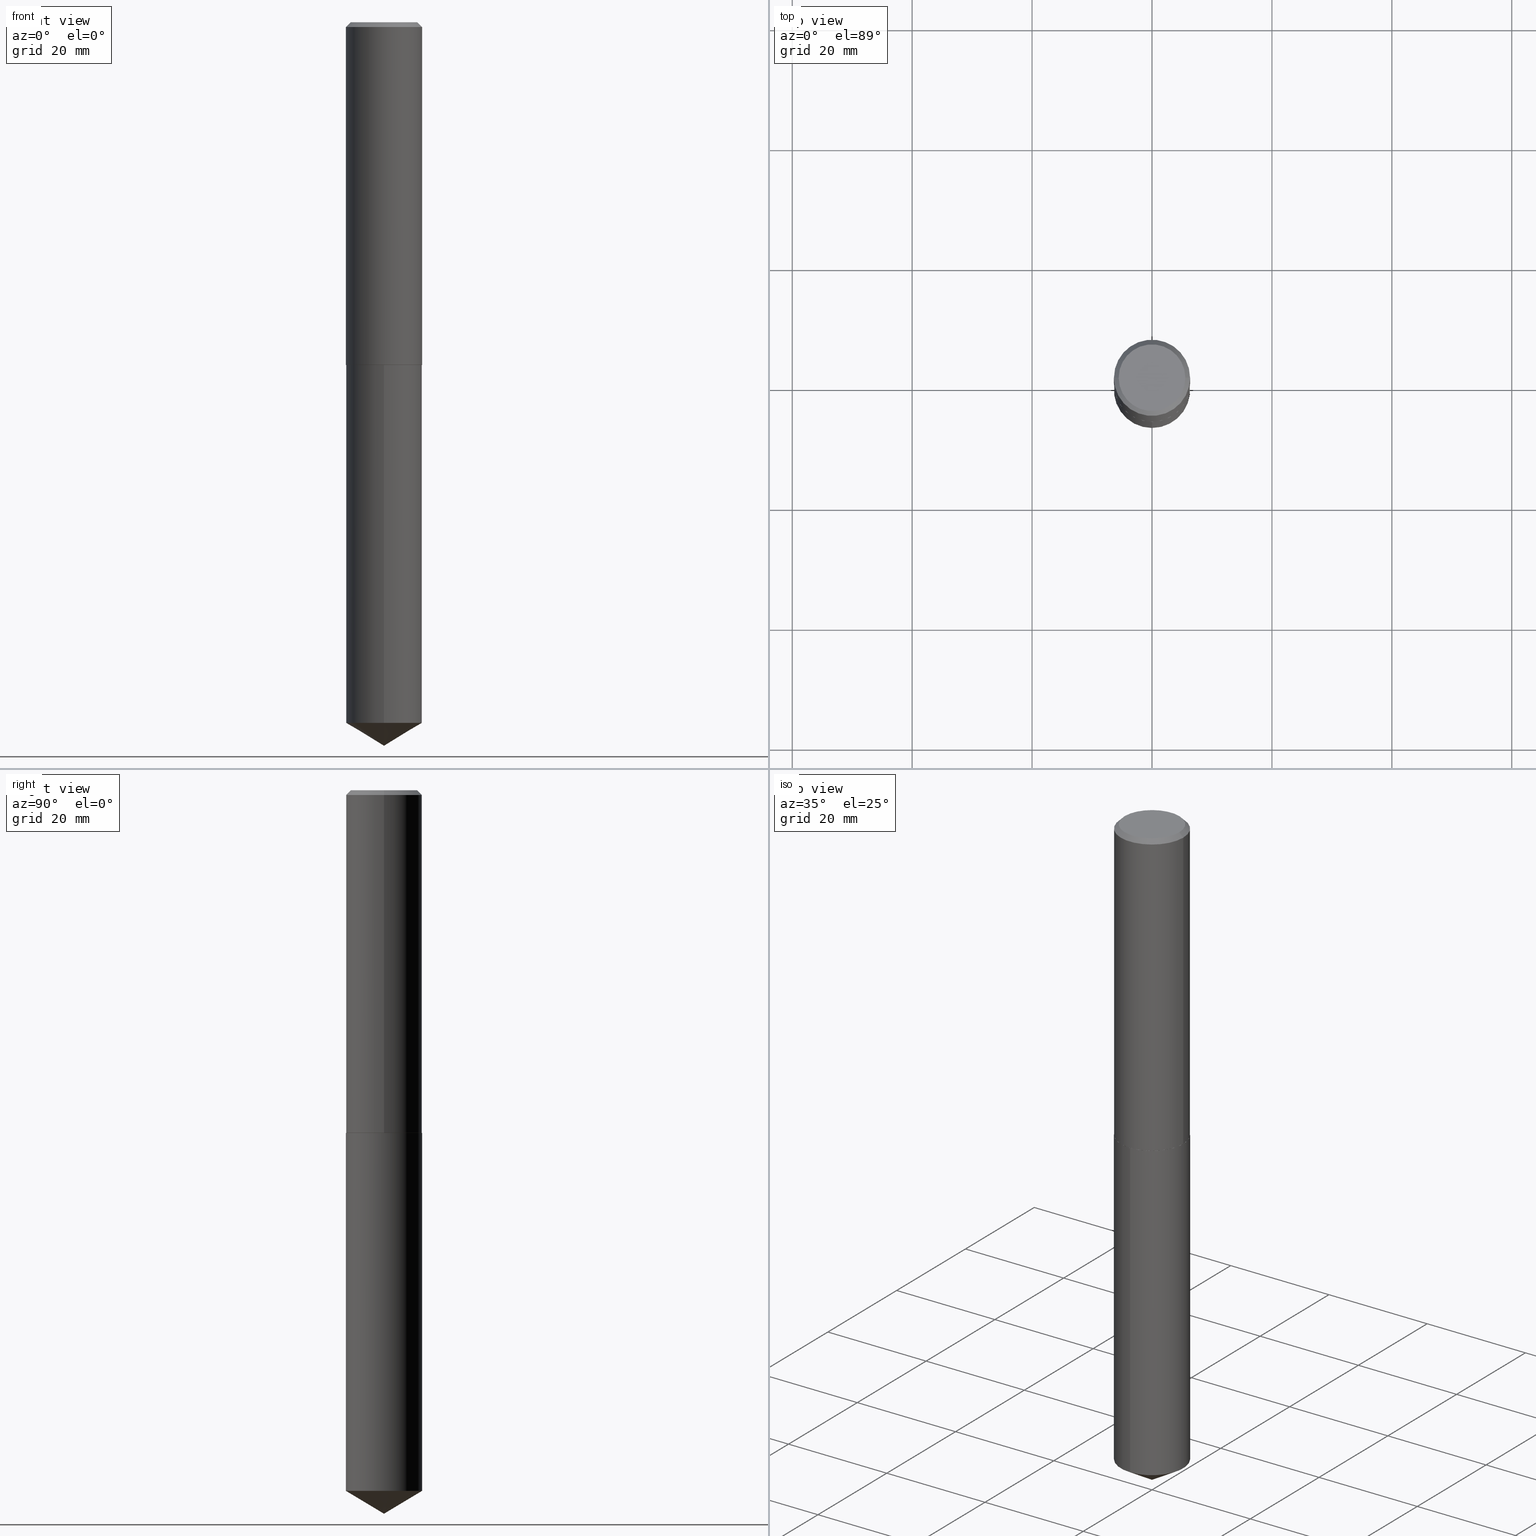
[diagram: canonical four-view strip — front | top / right | iso, engineering-drawing reading convention]
A machine part, canonical four-view strip (front | top / right | iso — engineering-drawing reading convention). The complete STEP part file that produces these views, byte-faithful:
ISO-10303-21;
HEADER;
FILE_DESCRIPTION (( 'STEP AP203' ),
    '1' );
FILE_NAME ('51132.STEP',
    '2024-04-22T18:34:38',
    ( '' ),
    ( '' ),
    'SwSTEP 2.0',
    'SolidWorks 2023',
    '' );
FILE_SCHEMA (( 'CONFIG_CONTROL_DESIGN' ));
ENDSEC;

DATA;
#1 = LINE ( 'NONE', #87, #347 ) ;
#2 = FACE_OUTER_BOUND ( 'NONE', #15, .T. ) ;
#3 = AXIS2_PLACEMENT_3D ( 'NONE', #251, #311, #338 ) ;
#4 = ADVANCED_FACE ( 'NONE', ( #228 ), #164, .T. ) ;
#5 = VERTEX_POINT ( 'NONE', #135 ) ;
#6 = DIRECTION ( 'NONE',  ( -6.982962677686265922E-15, -1.000000000000000000, 3.468864327941591848E-15 ) ) ;
#7 = EDGE_LOOP ( 'NONE', ( #350, #182 ) ) ;
#8 = ORIENTED_EDGE ( 'NONE', *, *, #114, .F. ) ;
#9 = AXIS2_PLACEMENT_3D ( 'NONE', #26, #118, #388 ) ;
#10 = FACE_OUTER_BOUND ( 'NONE', #69, .T. ) ;
#11 = ORIENTED_EDGE ( 'NONE', *, *, #207, .F. ) ;
#12 = DATE_AND_TIME ( #295, #126 ) ;
#13 = ORIENTED_EDGE ( 'NONE', *, *, #76, .F. ) ;
#14 = COORDINATED_UNIVERSAL_TIME_OFFSET ( 5, 0, .BEHIND. ) ;
#15 = EDGE_LOOP ( 'NONE', ( #63, #291, #130 ) ) ;
#16 = CONICAL_SURFACE ( 'NONE', #59, 65.52281426576847423, 1.029744258676654756 ) ;
#17 = VERTEX_POINT ( 'NONE', #263 ) ;
#18 = MANIFOLD_SOLID_BREP ( 'Body-Move/Copy2[2]', #52 ) ;
#19 = DATE_AND_TIME ( #131, #30 ) ;
#20 = CC_DESIGN_PERSON_AND_ORGANIZATION_ASSIGNMENT ( #129, #327, ( #110 ) ) ;
#21 = FACE_OUTER_BOUND ( 'NONE', #256, .T. ) ;
#22 = VECTOR ( 'NONE', #32, 39.37007874015747433 ) ;
#23 = AXIS2_PLACEMENT_3D ( 'NONE', #239, #390, #60 ) ;
#24 = APPLICATION_CONTEXT ( 'configuration controlled 3d designs of mechanical parts and assemblies' ) ;
#25 = DIRECTION ( 'NONE',  ( -1.000000000000000000, 6.982962677686266711E-15, 0.000000000000000000 ) ) ;
#26 = CARTESIAN_POINT ( 'NONE',  ( -8.466479816700748167E-28, 1.208718137559614316E-13, 34.62007874015748143 ) ) ;
#27 = ADVANCED_FACE ( 'NONE', ( #106 ), #200, .F. ) ;
#28 = DIRECTION ( 'NONE',  ( -2.445468806185136597E-29, 3.491481338843145583E-15, 1.000000000000000000 ) ) ;
#29 = AXIS2_PLACEMENT_3D ( 'NONE', #281, #319, #247 ) ;
#30 = LOCAL_TIME ( 14, 34, 38.00000000000000000, #14 ) ;
#31 = DIRECTION ( 'NONE',  ( -5.985567269335943646E-15, -0.8571673007021107793, 0.5150380749100569311 ) ) ;
#32 = DIRECTION ( 'NONE',  ( 6.090539988449781591E-15, 0.8571673007021143320, 0.5150380749100510469 ) ) ;
#33 = DIRECTION ( 'NONE',  ( -2.445468806185136597E-29, 3.491481338843145583E-15, 1.000000000000000000 ) ) ;
#34 = EDGE_CURVE ( 'NONE', #230, #5, #328, .T. ) ;
#35 = CIRCLE ( 'NONE', #29, 0.2500000000000000000 ) ;
#36 = DIRECTION ( 'NONE',  ( 1.000000000000000000, -6.982962677686266711E-15, 0.000000000000000000 ) ) ;
#37 = EDGE_LOOP ( 'NONE', ( #288, #224 ) ) ;
#38 = DIRECTION ( 'NONE',  ( -2.445468806185136877E-29, 3.491481338843145188E-15, 1.000000000000000000 ) ) ;
#39 = CYLINDRICAL_SURFACE ( 'NONE', #3, 0.2500000000000000000 ) ;
#40 = FACE_OUTER_BOUND ( 'NONE', #342, .T. ) ;
#41 = PLANE ( 'NONE',  #225 ) ;
#42 = VERTEX_POINT ( 'NONE', #296 ) ;
#43 = COORDINATED_UNIVERSAL_TIME_OFFSET ( 5, 0, .BEHIND. ) ;
#44 = EDGE_LOOP ( 'NONE', ( #307, #66, #367, #253 ) ) ;
#45 = DATE_TIME_ROLE ( 'creation_date' ) ;
#46 =( GEOMETRIC_REPRESENTATION_CONTEXT ( 3 ) GLOBAL_UNCERTAINTY_ASSIGNED_CONTEXT ( ( #214 ) ) GLOBAL_UNIT_ASSIGNED_CONTEXT ( ( #245, #98, #120 ) ) REPRESENTATION_CONTEXT ( 'NONE', 'WORKASPACE' ) );
#47 = PERSON_AND_ORGANIZATION_ROLE ( 'classification_officer' ) ;
#48 = ORIENTED_EDGE ( 'NONE', *, *, #217, .F. ) ;
#49 = CARTESIAN_POINT ( 'NONE',  ( -0.2500000000000001110, 1.776356839400251254E-15, -1.229733772563727146E-29 ) ) ;
#50 = ADVANCED_FACE ( 'NONE', ( #21 ), #103, .T. ) ;
#51 = PERSON_AND_ORGANIZATION ( #231, #198 ) ;
#52 = CLOSED_SHELL ( 'NONE', ( #316, #102, #379, #97, #56, #4, #50, #333 ) ) ;
#53 = AXIS2_PLACEMENT_3D ( 'NONE', #64, #121, #36 ) ;
#54 = DIRECTION ( 'NONE',  ( -2.445468806185136597E-29, 3.491481338843145583E-15, 1.000000000000000000 ) ) ;
#55 = CARTESIAN_POINT ( 'NONE',  ( 1.161629575509715326E-28, -1.658407963972499159E-14, -4.750000000000000000 ) ) ;
#56 = ADVANCED_FACE ( 'NONE', ( #331 ), #197, .T. ) ;
#57 = DIRECTION ( 'NONE',  ( -0.7071067811865451302, 2.468850131082231817E-15, -0.7071067811865499042 ) ) ;
#58 = CIRCLE ( 'NONE', #282, 0.2500000000000000000 ) ;
#59 = AXIS2_PLACEMENT_3D ( 'NONE', #95, #279, #6 ) ;
#60 = DIRECTION ( 'NONE',  ( -6.982962677686265922E-15, -1.000000000000000000, 3.278217592397115862E-15 ) ) ;
#61 = EDGE_CURVE ( 'NONE', #179, #82, #188, .T. ) ;
#62 = CARTESIAN_POINT ( 'NONE',  ( 0.2500000000000002776, -9.599827941149224411E-15, -2.249499999999999833 ) ) ;
#63 = ORIENTED_EDGE ( 'NONE', *, *, #212, .F. ) ;
#64 = CARTESIAN_POINT ( 'NONE',  ( 5.501082079513464541E-29, -7.854087271727656156E-15, -2.249499999999999833 ) ) ;
#65 = AXIS2_PLACEMENT_3D ( 'NONE', #161, #286, #168 ) ;
#66 = ORIENTED_EDGE ( 'NONE', *, *, #386, .T. ) ;
#67 = VECTOR ( 'NONE', #153, 39.37007874015748143 ) ;
#68 = DIRECTION ( 'NONE',  ( 0.7071067811865451302, -7.319954787623248157E-15, -0.7071067811865499042 ) ) ;
#69 = EDGE_LOOP ( 'NONE', ( #93, #280, #163, #48 ) ) ;
#70 = CARTESIAN_POINT ( 'NONE',  ( -2.335971725809272108E-47, 3.335148527799636409E-33, 9.552245033349346191E-19 ) ) ;
#71 = FACE_OUTER_BOUND ( 'NONE', #365, .T. ) ;
#72 = ORIENTED_EDGE ( 'NONE', *, *, #187, .F. ) ;
#73 = EDGE_CURVE ( 'NONE', #5, #42, #101, .T. ) ;
#74 = PERSON_AND_ORGANIZATION_ROLE ( 'creator' ) ;
#75 = ORIENTED_EDGE ( 'NONE', *, *, #140, .F. ) ;
#76 = EDGE_CURVE ( 'NONE', #139, #315, #35, .T. ) ;
#77 = APPLICATION_PROTOCOL_DEFINITION ( 'international standard', 'config_control_design', 1994, #389 ) ;
#78 = CARTESIAN_POINT ( 'NONE',  ( 5.502304813916556222E-29, -7.855833012397076871E-15, -2.249999999999999556 ) ) ;
#79 = PERSON_AND_ORGANIZATION ( #231, #198 ) ;
#80 = DIRECTION ( 'NONE',  ( 6.982962677686265922E-15, 1.000000000000000000, -3.491385187310524484E-15 ) ) ;
#81 = APPROVAL_STATUS ( 'not_yet_approved' ) ;
#82 = VERTEX_POINT ( 'NONE', #156 ) ;
#83 = DIRECTION ( 'NONE',  ( -2.445468806185136597E-29, 3.491481338843145583E-15, 1.000000000000000000 ) ) ;
#84 = LINE ( 'NONE', #62, #109 ) ;
#85 = CC_DESIGN_PERSON_AND_ORGANIZATION_ASSIGNMENT ( #79, #47, ( #165 ) ) ;
#86 = CIRCLE ( 'NONE', #317, 0.2500000000000002776 ) ;
#87 = CARTESIAN_POINT ( 'NONE',  ( -0.2500000000000000000, 1.636631877582717577E-15, -0.03125000000000021511 ) ) ;
#88 = EDGE_CURVE ( 'NONE', #370, #99, #302, .T. ) ;
#89 = CARTESIAN_POINT ( 'NONE',  ( 5.502304813916556222E-29, -7.855833012397076871E-15, -2.249999999999999556 ) ) ;
#90 = DIRECTION ( 'NONE',  ( 2.438088387897960049E-29, -3.491481338843145188E-15, -1.000000000000000000 ) ) ;
#91 = AXIS2_PLACEMENT_3D ( 'NONE', #112, #54, #387 ) ;
#92 = DIRECTION ( 'NONE',  ( -1.000000000000000000, 6.982962677686265922E-15, -4.876176775795935793E-29 ) ) ;
#93 = ORIENTED_EDGE ( 'NONE', *, *, #261, .T. ) ;
#94 = APPROVAL_PERSON_ORGANIZATION ( #51, #334, #293 ) ;
#95 = CARTESIAN_POINT ( 'NONE',  ( -8.466479816700748167E-28, 1.208718137559614316E-13, 34.62007874015748143 ) ) ;
#96 = FACE_OUTER_BOUND ( 'NONE', #7, .T. ) ;
#97 = ADVANCED_FACE ( 'NONE', ( #96 ), #220, .F. ) ;
#98 =( NAMED_UNIT ( * ) PLANE_ANGLE_UNIT ( ) SI_UNIT ( $, .RADIAN. ) );
#99 = VERTEX_POINT ( 'NONE', #332 ) ;
#100 = PERSON_AND_ORGANIZATION ( #231, #198 ) ;
#101 = CIRCLE ( 'NONE', #223, 0.2500000000000000000 ) ;
#102 = ADVANCED_FACE ( 'NONE', ( #147 ), #143, .T. ) ;
#103 = CONICAL_SURFACE ( 'NONE', #237, 0.2500000000000000000, 0.7853981633974449483 ) ;
#104 = APPROVAL_STATUS ( 'not_yet_approved' ) ;
#105 = ORIENTED_EDGE ( 'NONE', *, *, #34, .F. ) ;
#106 = FACE_OUTER_BOUND ( 'NONE', #37, .T. ) ;
#107 = DIRECTION ( 'NONE',  ( 0.000000000000000000, 0.000000000000000000, 1.000000000000000000 ) ) ;
#108 = VERTEX_POINT ( 'NONE', #55 ) ;
#109 = VECTOR ( 'NONE', #206, 39.37007874015748143 ) ;
#110 = PRODUCT_DEFINITION_FORMATION_WITH_SPECIFIED_SOURCE ( 'ANY', '', #265, .NOT_KNOWN. ) ;
#111 = CARTESIAN_POINT ( 'NONE',  ( 5.501082079513464541E-29, -7.854087271727656156E-15, -2.249499999999999833 ) ) ;
#112 = CARTESIAN_POINT ( 'NONE',  ( 5.501082079513464541E-29, -7.854087271727656156E-15, -2.249499999999999833 ) ) ;
#113 = CARTESIAN_POINT ( 'NONE',  ( 1.161629840450965379E-28, -1.658407963972498844E-14, -4.750000000000000000 ) ) ;
#114 = EDGE_CURVE ( 'NONE', #108, #312, #208, .T. ) ;
#115 = VECTOR ( 'NONE', #31, 39.37007874015748143 ) ;
#116 = LOCAL_TIME ( 14, 34, 38.00000000000000000, #43 ) ;
#117 = FACE_OUTER_BOUND ( 'NONE', #381, .T. ) ;
#118 = DIRECTION ( 'NONE',  ( -2.445535948441506068E-29, 3.491385187310524484E-15, 1.000000000000000000 ) ) ;
#119 = VECTOR ( 'NONE', #359, 39.37007874015748143 ) ;
#120 =( NAMED_UNIT ( * ) SI_UNIT ( $, .STERADIAN. ) SOLID_ANGLE_UNIT ( ) );
#121 = DIRECTION ( 'NONE',  ( -2.445468806185136597E-29, 3.491481338843145583E-15, 1.000000000000000000 ) ) ;
#122 = ORIENTED_EDGE ( 'NONE', *, *, #207, .T. ) ;
#123 = AXIS2_PLACEMENT_3D ( 'NONE', #195, #322, #294 ) ;
#124 = DIRECTION ( 'NONE',  ( -2.445535948441506068E-29, 3.491385187310524484E-15, 1.000000000000000000 ) ) ;
#125 = ORIENTED_EDGE ( 'NONE', *, *, #217, .T. ) ;
#126 = LOCAL_TIME ( 14, 34, 38.00000000000000000, #352 ) ;
#127 = CARTESIAN_POINT ( 'NONE',  ( -1.745740669421511457E-15, -0.2500000000000078271, -2.249999999999999112 ) ) ;
#128 = ORIENTED_EDGE ( 'NONE', *, *, #355, .T. ) ;
#129 = PERSON_AND_ORGANIZATION ( #231, #198 ) ;
#130 = ORIENTED_EDGE ( 'NONE', *, *, #330, .F. ) ;
#131 = CALENDAR_DATE ( 2024, 22, 4 ) ;
#132 = ORIENTED_EDGE ( 'NONE', *, *, #384, .T. ) ;
#133 = AXIS2_PLACEMENT_3D ( 'NONE', #213, #157, #252 ) ;
#134 = DIRECTION ( 'NONE',  ( 1.000000000000000000, 0.000000000000000000, 0.000000000000000000 ) ) ;
#135 = CARTESIAN_POINT ( 'NONE',  ( -0.2500000000000000000, -2.205241192383000191E-15, -0.03125000000000021511 ) ) ;
#136 = ORIENTED_EDGE ( 'NONE', *, *, #298, .F. ) ;
#137 = COORDINATED_UNIVERSAL_TIME_OFFSET ( 5, 0, .BEHIND. ) ;
#138 = CIRCLE ( 'NONE', #348, 0.2495000000000003049 ) ;
#139 = VERTEX_POINT ( 'NONE', #362 ) ;
#140 = EDGE_CURVE ( 'NONE', #42, #5, #175, .T. ) ;
#141 = CARTESIAN_POINT ( 'NONE',  ( 5.502304813916556222E-29, -7.855833012397076871E-15, -2.249999999999999556 ) ) ;
#142 = DIRECTION ( 'NONE',  ( -2.445535948441506068E-29, 3.491385187310524484E-15, 1.000000000000000000 ) ) ;
#143 = CYLINDRICAL_SURFACE ( 'NONE', #242, 0.2500000000000001110 ) ;
#144 = AXIS2_PLACEMENT_3D ( 'NONE', #336, #221, #314 ) ;
#145 = DIRECTION ( 'NONE',  ( 1.000000000000000000, -6.982962677686266711E-15, 0.000000000000000000 ) ) ;
#146 = APPROVAL ( #81, 'UNSPECIFIED' ) ;
#147 = FACE_OUTER_BOUND ( 'NONE', #222, .T. ) ;
#148 = MANIFOLD_SOLID_BREP ( 'Body-Move/Copy2[1]', #150 ) ;
#149 = CARTESIAN_POINT ( 'NONE',  ( 1.124878812406164387E-28, -1.605983701444562485E-14, -4.599784845243109821 ) ) ;
#150 = CLOSED_SHELL ( 'NONE', ( #324, #371, #158, #289, #27 ) ) ;
#151 = CC_DESIGN_PERSON_AND_ORGANIZATION_ASSIGNMENT ( #373, #74, ( #180 ) ) ;
#152 = LOCAL_TIME ( 14, 34, 38.00000000000000000, #260 ) ;
#153 = DIRECTION ( 'NONE',  ( -2.445535948441506068E-29, 3.491385187310524484E-15, 1.000000000000000000 ) ) ;
#154 = ORIENTED_EDGE ( 'NONE', *, *, #386, .F. ) ;
#155 = LINE ( 'NONE', #248, #272 ) ;
#156 = CARTESIAN_POINT ( 'NONE',  ( 0.2495000000000003049, -9.598082200479802119E-15, -2.249999999999999556 ) ) ;
#157 = DIRECTION ( 'NONE',  ( -2.445535948441506068E-29, 3.491385187310524484E-15, 1.000000000000000000 ) ) ;
#158 = ADVANCED_FACE ( 'NONE', ( #2 ), #204, .T. ) ;
#159 = CARTESIAN_POINT ( 'NONE',  ( 7.642090019328604414E-31, -1.091087918388490513E-16, -0.03125000000000021511 ) ) ;
#160 = EDGE_LOOP ( 'NONE', ( #249, #346 ) ) ;
#161 = CARTESIAN_POINT ( 'NONE',  ( 3.781988849709876148E-29, -1.031942338744500588E-14, -2.249999999999999556 ) ) ;
#162 = EDGE_LOOP ( 'NONE', ( #325, #219, #125, #11 ) ) ;
#163 = ORIENTED_EDGE ( 'NONE', *, *, #304, .F. ) ;
#164 = CYLINDRICAL_SURFACE ( 'NONE', #123, 0.2500000000000001110 ) ;
#165 = SECURITY_CLASSIFICATION ( '', '', #166 ) ;
#166 = SECURITY_CLASSIFICATION_LEVEL ( 'unclassified' ) ;
#167 = DIRECTION ( 'NONE',  ( -2.445468806185136877E-29, 3.491481338843145188E-15, 1.000000000000000000 ) ) ;
#168 = DIRECTION ( 'NONE',  ( 1.000000000000000000, -6.982962677686265922E-15, 4.876176775795935793E-29 ) ) ;
#169 = AXIS2_PLACEMENT_3D ( 'NONE', #178, #305, #366 ) ;
#170 = DIRECTION ( 'NONE',  ( -2.445468806185136597E-29, 3.491481338843145583E-15, 1.000000000000000000 ) ) ;
#171 = PRODUCT_DEFINITION_SHAPE ( 'NONE', 'NONE',  #180 ) ;
#172 = DIRECTION ( 'NONE',  ( -2.445468806185136597E-29, 3.491481338843145583E-15, 1.000000000000000000 ) ) ;
#173 = CARTESIAN_POINT ( 'NONE',  ( 5.502304813916556222E-29, -7.855833012397076871E-15, -2.249999999999999556 ) ) ;
#174 = CC_DESIGN_DATE_AND_TIME_ASSIGNMENT ( #264, #45, ( #180 ) ) ;
#175 = CIRCLE ( 'NONE', #271, 0.2500000000000000000 ) ;
#176 = CONICAL_SURFACE ( 'NONE', #53, 0.2500000000000002776, 0.7853981633975165577 ) ;
#177 = DIRECTION ( 'NONE',  ( -6.982962677686265922E-15, -1.000000000000000000, 4.370956789862821150E-15 ) ) ;
#178 = CARTESIAN_POINT ( 'NONE',  ( -2.335971725809272108E-47, 3.335148527799636409E-33, 9.552245033349346191E-19 ) ) ;
#179 = VERTEX_POINT ( 'NONE', #360 ) ;
#180 = PRODUCT_DEFINITION ( 'UNKNOWN', '', #110, #254 ) ;
#181 = CARTESIAN_POINT ( 'NONE',  ( 1.776356839400362877E-15, 0.2499999999999921452, -2.250000000000000444 ) ) ;
#182 = ORIENTED_EDGE ( 'NONE', *, *, #61, .F. ) ;
#183 = EDGE_CURVE ( 'NONE', #312, #234, #58, .T. ) ;
#184 = FACE_OUTER_BOUND ( 'NONE', #44, .T. ) ;
#185 =( LENGTH_UNIT ( ) NAMED_UNIT ( * ) SI_UNIT ( $, .METRE. ) );
#186 = ORIENTED_EDGE ( 'NONE', *, *, #384, .F. ) ;
#187 = EDGE_CURVE ( 'NONE', #315, #139, #374, .T. ) ;
#188 = CIRCLE ( 'NONE', #297, 0.2495000000000003049 ) ;
#189 = FACE_OUTER_BOUND ( 'NONE', #160, .T. ) ;
#190 = ORIENTED_EDGE ( 'NONE', *, *, #73, .T. ) ;
#191 = APPROVAL_PERSON_ORGANIZATION ( #349, #146, #267 ) ;
#192 = APPROVAL_DATE_TIME ( #385, #146 ) ;
#193 = PRODUCT_RELATED_PRODUCT_CATEGORY ( 'detail', '', ( #265 ) ) ;
#194 = APPROVAL_DATE_TIME ( #351, #337 ) ;
#195 = CARTESIAN_POINT ( 'NONE',  ( 0.000000000000000000, 0.000000000000000000, 0.000000000000000000 ) ) ;
#196 = CALENDAR_DATE ( 2024, 22, 4 ) ;
#197 = CONICAL_SURFACE ( 'NONE', #91, 0.2500000000000002776, 0.7853981633975165577 ) ;
#198 = ORGANIZATION ( 'UNSPECIFIED', 'UNSPECIFIED', '' ) ;
#199 = MECHANICAL_CONTEXT ( 'NONE', #24, 'mechanical' ) ;
#200 = PLANE ( 'NONE',  #275 ) ;
#201 = APPROVAL_DATE_TIME ( #12, #334 ) ;
#202 = ORIENTED_EDGE ( 'NONE', *, *, #355, .F. ) ;
#203 = DIRECTION ( 'NONE',  ( 2.445468806185136597E-29, -3.491481338843145583E-15, -1.000000000000000000 ) ) ;
#204 = CONICAL_SURFACE ( 'NONE', #9, 65.52281426576847423, 1.029744258676654756 ) ;
#205 = CC_DESIGN_SECURITY_CLASSIFICATION ( #165, ( #110 ) ) ;
#206 = DIRECTION ( 'NONE',  ( 0.7071067811865957564, -2.468850131082761932E-15, 0.7071067811864992780 ) ) ;
#207 = EDGE_CURVE ( 'NONE', #230, #17, #86, .T. ) ;
#208 = LINE ( 'NONE', #240, #115 ) ;
#209 = CYLINDRICAL_SURFACE ( 'NONE', #23, 0.2500000000000000000 ) ;
#210 = CARTESIAN_POINT ( 'NONE',  ( -0.2500000000000002776, -6.077730432327403325E-15, -2.249499999999999833 ) ) ;
#211 = LENGTH_MEASURE_WITH_UNIT ( LENGTH_MEASURE( 0.02539999999999999897 ), #185 );
#212 = EDGE_CURVE ( 'NONE', #108, #234, #357, .T. ) ;
#213 = CARTESIAN_POINT ( 'NONE',  ( 1.124878812406164387E-28, -1.605983701444562485E-14, -4.599784845243109821 ) ) ;
#214 = UNCERTAINTY_MEASURE_WITH_UNIT (LENGTH_MEASURE( 1.000000000000000082E-05 ), #245, 'distance_accuracy_value', 'NONE');
#215 = LINE ( 'NONE', #127, #67 ) ;
#216 = ORIENTED_EDGE ( 'NONE', *, *, #34, .T. ) ;
#217 = EDGE_CURVE ( 'NONE', #82, #17, #84, .T. ) ;
#218 = CARTESIAN_POINT ( 'NONE',  ( -1.167985862904636054E-47, 1.667574263899818204E-33, 4.776122516674673095E-19 ) ) ;
#219 = ORIENTED_EDGE ( 'NONE', *, *, #61, .T. ) ;
#220 = PLANE ( 'NONE',  #65 ) ;
#221 = DIRECTION ( 'NONE',  ( -2.445468806185136597E-29, 3.491481338843145583E-15, 1.000000000000000000 ) ) ;
#222 = EDGE_LOOP ( 'NONE', ( #372, #216, #75, #318 ) ) ;
#223 = AXIS2_PLACEMENT_3D ( 'NONE', #299, #83, #309 ) ;
#224 = ORIENTED_EDGE ( 'NONE', *, *, #187, .T. ) ;
#225 = AXIS2_PLACEMENT_3D ( 'NONE', #218, #90, #92 ) ;
#226 = CC_DESIGN_PERSON_AND_ORGANIZATION_ASSIGNMENT ( #255, #382, ( #265 ) ) ;
#227 = CALENDAR_DATE ( 2024, 22, 4 ) ;
#228 = FACE_OUTER_BOUND ( 'NONE', #354, .T. ) ;
#229 = APPLICATION_PROTOCOL_DEFINITION ( 'international standard', 'config_control_design', 1994, #24 ) ;
#230 = VERTEX_POINT ( 'NONE', #335 ) ;
#231 = PERSON ( 'UNSPECIFIED', 'UNSPECIFIED', 'UNSPECIFIED', ('UNSPECIFIED'), ('UNSPECIFIED'), ('UNSPECIFIED') ) ;
#232 = EDGE_CURVE ( 'NONE', #179, #230, #236, .T. ) ;
#233 = APPROVAL_STATUS ( 'not_yet_approved' ) ;
#234 = VERTEX_POINT ( 'NONE', #273 ) ;
#235 = DIRECTION ( 'NONE',  ( -2.445535948441506068E-29, 3.491385187310524484E-15, 1.000000000000000000 ) ) ;
#236 = LINE ( 'NONE', #210, #119 ) ;
#237 = AXIS2_PLACEMENT_3D ( 'NONE', #268, #203, #25 ) ;
#238 = VECTOR ( 'NONE', #68, 39.37007874015748143 ) ;
#239 = CARTESIAN_POINT ( 'NONE',  ( 5.502304813916556222E-29, -7.855833012397076871E-15, -2.249999999999999556 ) ) ;
#240 = CARTESIAN_POINT ( 'NONE',  ( 1.161599361494349176E-28, -1.658451232162178338E-14, -4.750000000000000000 ) ) ;
#241 = DIRECTION ( 'NONE',  ( -6.982962677686265922E-15, -1.000000000000000000, 3.278217592397115862E-15 ) ) ;
#242 = AXIS2_PLACEMENT_3D ( 'NONE', #301, #172, #274 ) ;
#243 = CC_DESIGN_APPROVAL ( #146, ( #180 ) ) ;
#244 = EDGE_CURVE ( 'NONE', #99, #5, #1, .T. ) ;
#245 =( CONVERSION_BASED_UNIT ( 'INCH', #211 ) LENGTH_UNIT ( ) NAMED_UNIT ( #361 ) );
#246 = ORIENTED_EDGE ( 'NONE', *, *, #330, .T. ) ;
#247 = DIRECTION ( 'NONE',  ( -6.982962677686265922E-15, -1.000000000000000000, 3.278217592397115862E-15 ) ) ;
#248 = CARTESIAN_POINT ( 'NONE',  ( 1.776356839400305291E-15, 0.2499999999999921452, -2.250000000000000444 ) ) ;
#249 = ORIENTED_EDGE ( 'NONE', *, *, #298, .T. ) ;
#250 = LOCAL_TIME ( 14, 34, 38.00000000000000000, #137 ) ;
#251 = CARTESIAN_POINT ( 'NONE',  ( 5.502304813916556222E-29, -7.855833012397076871E-15, -2.249999999999999556 ) ) ;
#252 = DIRECTION ( 'NONE',  ( -6.982962677686265922E-15, -1.000000000000000000, 4.370956789862821150E-15 ) ) ;
#253 = ORIENTED_EDGE ( 'NONE', *, *, #244, .F. ) ;
#254 = DESIGN_CONTEXT ( 'detailed design', #389, 'design' ) ;
#255 = PERSON_AND_ORGANIZATION ( #231, #198 ) ;
#256 = EDGE_LOOP ( 'NONE', ( #154, #136, #339, #190 ) ) ;
#257 = DIRECTION ( 'NONE',  ( -2.445468806185136597E-29, 3.491481338843145583E-15, 1.000000000000000000 ) ) ;
#258 = AXIS2_PLACEMENT_3D ( 'NONE', #89, #235, #241 ) ;
#259 = VECTOR ( 'NONE', #38, 39.37007874015748143 ) ;
#260 = COORDINATED_UNIVERSAL_TIME_OFFSET ( 5, 0, .BEHIND. ) ;
#261 = EDGE_CURVE ( 'NONE', #82, #179, #138, .T. ) ;
#262 = PERSON_AND_ORGANIZATION ( #231, #198 ) ;
#263 = CARTESIAN_POINT ( 'NONE',  ( 0.2500000000000002776, -9.599827941149224411E-15, -2.249499999999999833 ) ) ;
#264 = DATE_AND_TIME ( #196, #116 ) ;
#265 = PRODUCT ( '51132', '51132', '', ( #199 ) ) ;
#266 = CC_DESIGN_PERSON_AND_ORGANIZATION_ASSIGNMENT ( #100, #290, ( #110 ) ) ;
#267 = APPROVAL_ROLE ( '' ) ;
#268 = CARTESIAN_POINT ( 'NONE',  ( 7.642090019328604414E-31, -1.091087918388490513E-16, -0.03125000000000021511 ) ) ;
#269 = DIRECTION ( 'NONE',  ( 1.000000000000000000, -6.982962677686266711E-15, 0.000000000000000000 ) ) ;
#270 = DIRECTION ( 'NONE',  ( -2.445468806185136597E-29, 3.491481338843145583E-15, 1.000000000000000000 ) ) ;
#271 = AXIS2_PLACEMENT_3D ( 'NONE', #300, #33, #269 ) ;
#272 = VECTOR ( 'NONE', #124, 39.37007874015748143 ) ;
#273 = CARTESIAN_POINT ( 'NONE',  ( 1.776356839400362483E-15, 0.2499999999999839018, -4.599784845243110709 ) ) ;
#274 = DIRECTION ( 'NONE',  ( 1.000000000000000000, -6.982962677686267499E-15, 4.876176775795936353E-29 ) ) ;
#275 = AXIS2_PLACEMENT_3D ( 'NONE', #78, #353, #80 ) ;
#276 = ORIENTED_EDGE ( 'NONE', *, *, #183, .F. ) ;
#277 = CARTESIAN_POINT ( 'NONE',  ( 0.2500000000000001110, -1.745740669421567664E-15, 1.219044193948984649E-29 ) ) ;
#278 = ORIENTED_EDGE ( 'NONE', *, *, #212, .T. ) ;
#279 = DIRECTION ( 'NONE',  ( -2.445535948441506068E-29, 3.491385187310524484E-15, 1.000000000000000000 ) ) ;
#280 = ORIENTED_EDGE ( 'NONE', *, *, #232, .T. ) ;
#281 = CARTESIAN_POINT ( 'NONE',  ( 5.502304813916556222E-29, -7.855833012397076871E-15, -2.249999999999999556 ) ) ;
#282 = AXIS2_PLACEMENT_3D ( 'NONE', #149, #142, #177 ) ;
#283 = CIRCLE ( 'NONE', #169, 0.2187500000000000000 ) ;
#284 = DIRECTION ( 'NONE',  ( -1.000000000000000000, 6.982962677686266711E-15, 0.000000000000000000 ) ) ;
#285 = ORIENTED_EDGE ( 'NONE', *, *, #73, .F. ) ;
#286 = DIRECTION ( 'NONE',  ( -2.438088387897960049E-29, 3.491481338843145188E-15, 1.000000000000000000 ) ) ;
#287 = CALENDAR_DATE ( 2024, 22, 4 ) ;
#288 = ORIENTED_EDGE ( 'NONE', *, *, #76, .T. ) ;
#289 = ADVANCED_FACE ( 'NONE', ( #117 ), #209, .T. ) ;
#290 = PERSON_AND_ORGANIZATION_ROLE ( 'design_supplier' ) ;
#291 = ORIENTED_EDGE ( 'NONE', *, *, #114, .T. ) ;
#292 = AXIS2_PLACEMENT_3D ( 'NONE', #329, #107, #134 ) ;
#293 = APPROVAL_ROLE ( '' ) ;
#294 = DIRECTION ( 'NONE',  ( 1.000000000000000000, -6.982962677686267499E-15, 4.876176775795936353E-29 ) ) ;
#295 = CALENDAR_DATE ( 2024, 22, 4 ) ;
#296 = CARTESIAN_POINT ( 'NONE',  ( 0.2500000000000000000, -1.854849461260415778E-15, -0.03125000000000021511 ) ) ;
#297 = AXIS2_PLACEMENT_3D ( 'NONE', #141, #170, #356 ) ;
#298 = EDGE_CURVE ( 'NONE', #99, #370, #283, .T. ) ;
#299 = CARTESIAN_POINT ( 'NONE',  ( 7.642090019328604414E-31, -1.091087918388490513E-16, -0.03125000000000021511 ) ) ;
#300 = CARTESIAN_POINT ( 'NONE',  ( 7.642090019328604414E-31, -1.091087918388490513E-16, -0.03125000000000021511 ) ) ;
#301 = CARTESIAN_POINT ( 'NONE',  ( 0.000000000000000000, 0.000000000000000000, 0.000000000000000000 ) ) ;
#302 = CIRCLE ( 'NONE', #308, 0.2187500000000000000 ) ;
#303 = DIRECTION ( 'NONE',  ( 1.000000000000000000, -6.982962677686264344E-15, 0.000000000000000000 ) ) ;
#304 = EDGE_CURVE ( 'NONE', #17, #230, #363, .T. ) ;
#305 = DIRECTION ( 'NONE',  ( -2.445468806185136597E-29, 3.491481338843145583E-15, 1.000000000000000000 ) ) ;
#306 = CARTESIAN_POINT ( 'NONE',  ( 0.2187500000000000000, -1.662483614147127260E-15, 9.552245033460884497E-19 ) ) ;
#307 = ORIENTED_EDGE ( 'NONE', *, *, #88, .F. ) ;
#308 = AXIS2_PLACEMENT_3D ( 'NONE', #70, #257, #313 ) ;
#309 = DIRECTION ( 'NONE',  ( 1.000000000000000000, -6.982962677686266711E-15, 0.000000000000000000 ) ) ;
#310 = AXIS2_PLACEMENT_3D ( 'NONE', #159, #369, #284 ) ;
#311 = DIRECTION ( 'NONE',  ( -2.445535948441506068E-29, 3.491385187310524484E-15, 1.000000000000000000 ) ) ;
#312 = VERTEX_POINT ( 'NONE', #364 ) ;
#313 = DIRECTION ( 'NONE',  ( 1.000000000000000000, -6.982962677686266711E-15, 4.876188151940832700E-29 ) ) ;
#314 = DIRECTION ( 'NONE',  ( 1.000000000000000000, -6.982962677686266711E-15, 0.000000000000000000 ) ) ;
#315 = VERTEX_POINT ( 'NONE', #181 ) ;
#316 = ADVANCED_FACE ( 'NONE', ( #184 ), #375, .T. ) ;
#317 = AXIS2_PLACEMENT_3D ( 'NONE', #111, #270, #145 ) ;
#318 = ORIENTED_EDGE ( 'NONE', *, *, #358, .F. ) ;
#319 = DIRECTION ( 'NONE',  ( -2.445535948441506068E-29, 3.491385187310524484E-15, 1.000000000000000000 ) ) ;
#320 = ORIENTED_EDGE ( 'NONE', *, *, #358, .T. ) ;
#321 = SHAPE_DEFINITION_REPRESENTATION ( #171, #326 ) ;
#322 = DIRECTION ( 'NONE',  ( -2.445468806185136597E-29, 3.491481338843145583E-15, 1.000000000000000000 ) ) ;
#323 = APPROVAL_PERSON_ORGANIZATION ( #262, #337, #380 ) ;
#324 = ADVANCED_FACE ( 'NONE', ( #71 ), #39, .T. ) ;
#325 = ORIENTED_EDGE ( 'NONE', *, *, #232, .F. ) ;
#326 = ADVANCED_BREP_SHAPE_REPRESENTATION ( '51132', ( #148, #18, #292 ), #46 ) ;
#327 = PERSON_AND_ORGANIZATION_ROLE ( 'creator' ) ;
#328 = LINE ( 'NONE', #49, #383 ) ;
#329 = CARTESIAN_POINT ( 'NONE',  ( 0.000000000000000000, 0.000000000000000000, 0.000000000000000000 ) ) ;
#330 = EDGE_CURVE ( 'NONE', #234, #312, #368, .T. ) ;
#331 = FACE_OUTER_BOUND ( 'NONE', #162, .T. ) ;
#332 = CARTESIAN_POINT ( 'NONE',  ( -0.2187500000000000000, 1.582077481663294210E-15, 9.552245033240612038E-19 ) ) ;
#333 = ADVANCED_FACE ( 'NONE', ( #189 ), #41, .F. ) ;
#334 = APPROVAL ( #233, 'UNSPECIFIED' ) ;
#335 = CARTESIAN_POINT ( 'NONE',  ( -0.2500000000000002776, -6.077730432327403325E-15, -2.249499999999999833 ) ) ;
#336 = CARTESIAN_POINT ( 'NONE',  ( 5.501082079513464541E-29, -7.854087271727656156E-15, -2.249499999999999833 ) ) ;
#337 = APPROVAL ( #104, 'UNSPECIFIED' ) ;
#338 = DIRECTION ( 'NONE',  ( -6.982962677686265922E-15, -1.000000000000000000, 3.278217592397115862E-15 ) ) ;
#339 = ORIENTED_EDGE ( 'NONE', *, *, #244, .T. ) ;
#340 = CC_DESIGN_APPROVAL ( #334, ( #110 ) ) ;
#341 = CARTESIAN_POINT ( 'NONE',  ( 0.2500000000000000000, -1.824233291281731991E-15, -0.03125000000000021511 ) ) ;
#342 = EDGE_LOOP ( 'NONE', ( #8, #278, #276 ) ) ;
#343 = CC_DESIGN_DATE_AND_TIME_ASSIGNMENT ( #19, #377, ( #165 ) ) ;
#344 = LINE ( 'NONE', #341, #238 ) ;
#345 = LINE ( 'NONE', #277, #259 ) ;
#346 = ORIENTED_EDGE ( 'NONE', *, *, #88, .T. ) ;
#347 = VECTOR ( 'NONE', #57, 39.37007874015748143 ) ;
#348 = AXIS2_PLACEMENT_3D ( 'NONE', #173, #28, #303 ) ;
#349 = PERSON_AND_ORGANIZATION ( #231, #198 ) ;
#350 = ORIENTED_EDGE ( 'NONE', *, *, #261, .F. ) ;
#351 = DATE_AND_TIME ( #227, #250 ) ;
#352 = COORDINATED_UNIVERSAL_TIME_OFFSET ( 5, 0, .BEHIND. ) ;
#353 = DIRECTION ( 'NONE',  ( 2.445535948441505788E-29, -3.491385187310524484E-15, -1.000000000000000000 ) ) ;
#354 = EDGE_LOOP ( 'NONE', ( #105, #122, #320, #285 ) ) ;
#355 = EDGE_CURVE ( 'NONE', #234, #315, #155, .T. ) ;
#356 = DIRECTION ( 'NONE',  ( 1.000000000000000000, -6.982962677686264344E-15, 0.000000000000000000 ) ) ;
#357 = LINE ( 'NONE', #113, #22 ) ;
#358 = EDGE_CURVE ( 'NONE', #17, #42, #345, .T. ) ;
#359 = DIRECTION ( 'NONE',  ( -0.7071067811865957564, 7.493145998870527710E-15, 0.7071067811864992780 ) ) ;
#360 = CARTESIAN_POINT ( 'NONE',  ( -0.2495000000000003049, -6.080379659501513737E-15, -2.249999999999999556 ) ) ;
#361 = DIMENSIONAL_EXPONENTS ( 1.000000000000000000, 0.000000000000000000, 0.000000000000000000, 0.000000000000000000, 0.000000000000000000, 0.000000000000000000, 0.000000000000000000 ) ;
#362 = CARTESIAN_POINT ( 'NONE',  ( -1.745740669421511457E-15, -0.2500000000000078271, -2.249999999999999112 ) ) ;
#363 = CIRCLE ( 'NONE', #144, 0.2500000000000002776 ) ;
#364 = CARTESIAN_POINT ( 'NONE',  ( -1.745740669421453673E-15, -0.2500000000000159872, -4.599784845243108933 ) ) ;
#365 = EDGE_LOOP ( 'NONE', ( #378, #128, #13, #186 ) ) ;
#366 = DIRECTION ( 'NONE',  ( 1.000000000000000000, -6.982962677686266711E-15, 4.876188151940832700E-29 ) ) ;
#367 = ORIENTED_EDGE ( 'NONE', *, *, #140, .T. ) ;
#368 = CIRCLE ( 'NONE', #133, 0.2500000000000000000 ) ;
#369 = DIRECTION ( 'NONE',  ( 2.445468806185136597E-29, -3.491481338843145583E-15, -1.000000000000000000 ) ) ;
#370 = VERTEX_POINT ( 'NONE', #306 ) ;
#371 = ADVANCED_FACE ( 'NONE', ( #40 ), #16, .T. ) ;
#372 = ORIENTED_EDGE ( 'NONE', *, *, #304, .T. ) ;
#373 = PERSON_AND_ORGANIZATION ( #231, #198 ) ;
#374 = CIRCLE ( 'NONE', #258, 0.2500000000000000000 ) ;
#375 = CONICAL_SURFACE ( 'NONE', #310, 0.2500000000000000000, 0.7853981633974449483 ) ;
#376 = CC_DESIGN_APPROVAL ( #337, ( #165 ) ) ;
#377 = DATE_TIME_ROLE ( 'classification_date' ) ;
#378 = ORIENTED_EDGE ( 'NONE', *, *, #183, .T. ) ;
#379 = ADVANCED_FACE ( 'NONE', ( #10 ), #176, .T. ) ;
#380 = APPROVAL_ROLE ( '' ) ;
#381 = EDGE_LOOP ( 'NONE', ( #202, #246, #132, #72 ) ) ;
#382 = PERSON_AND_ORGANIZATION_ROLE ( 'design_owner' ) ;
#383 = VECTOR ( 'NONE', #167, 39.37007874015748143 ) ;
#384 = EDGE_CURVE ( 'NONE', #312, #139, #215, .T. ) ;
#385 = DATE_AND_TIME ( #287, #152 ) ;
#386 = EDGE_CURVE ( 'NONE', #370, #42, #344, .T. ) ;
#387 = DIRECTION ( 'NONE',  ( 1.000000000000000000, -6.982962677686266711E-15, 0.000000000000000000 ) ) ;
#388 = DIRECTION ( 'NONE',  ( -6.982962677686265922E-15, -1.000000000000000000, 3.468864327941591848E-15 ) ) ;
#389 = APPLICATION_CONTEXT ( 'configuration controlled 3d designs of mechanical parts and assemblies' ) ;
#390 = DIRECTION ( 'NONE',  ( -2.445535948441506068E-29, 3.491385187310524484E-15, 1.000000000000000000 ) ) ;
ENDSEC;
END-ISO-10303-21;
